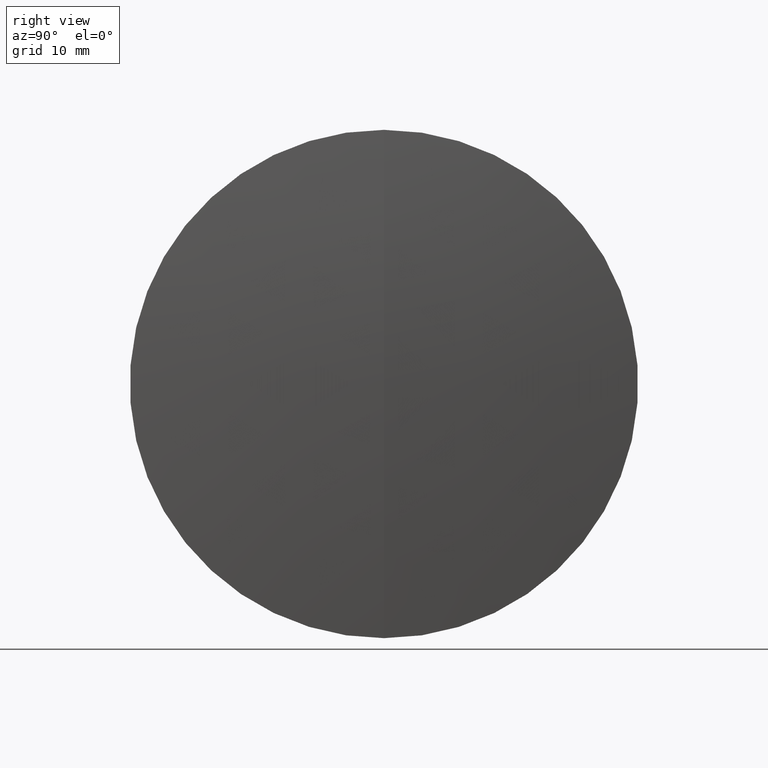
[diagram: clean part render]
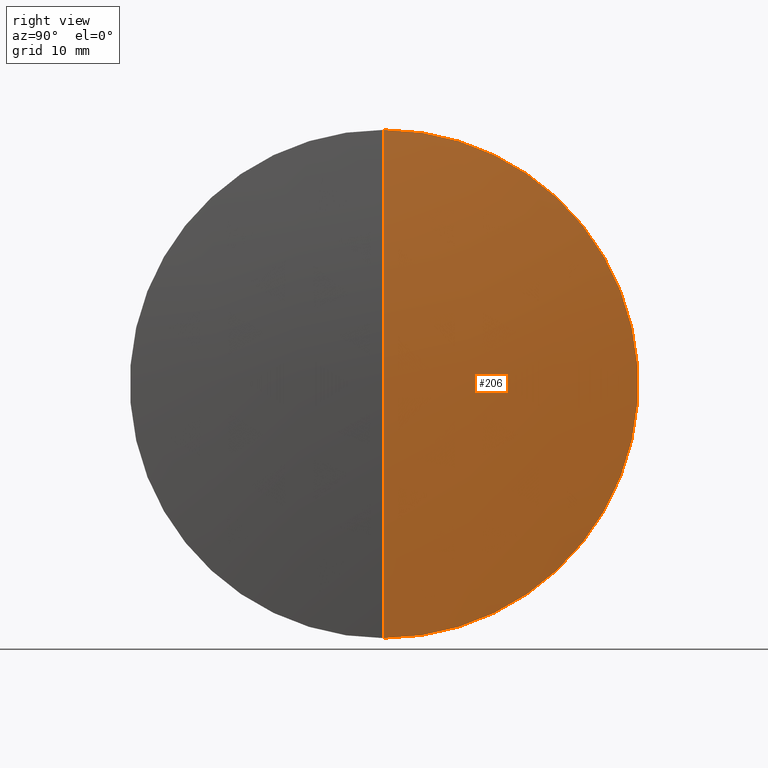
[diagram: same view with one face highlighted and labeled with its STEP entity id]
A machine part, right view. The second image highlights one B-rep face of the part: STEP entity #206.
In plain terms, the highlighted spherical surface has radius 238.5 mm.
Its self-contained STEP definition (entity closure, byte-faithful):
#32 = CARTESIAN_POINT ( 'NONE',  ( 348.5574619542142000, 0.0000000000000000000, 1.460391307983218500E-014 ) ) ;
#50 = CIRCLE ( 'NONE', #180, 25.39999999999994900 ) ;
#59 = CARTESIAN_POINT ( 'NONE',  ( 110.0574619542142300, 0.0000000000000000000, 0.0000000000000000000 ) ) ;
#63 = CARTESIAN_POINT ( 'NONE',  ( 110.0574619542142300, 0.0000000000000000000, 0.0000000000000000000 ) ) ;
#64 = DIRECTION ( 'NONE',  ( 0.0000000000000000000, -1.224646799147353200E-016, 1.000000000000000000 ) ) ;
#81 = ORIENTED_EDGE ( 'NONE', *, *, #189, .F. ) ;
#87 = VERTEX_POINT ( 'NONE', #32 ) ;
#91 = CARTESIAN_POINT ( 'NONE',  ( 347.2010682353029000, 0.0000000000000000000, 25.39999999999994900 ) ) ;
#92 = DIRECTION ( 'NONE',  ( 0.0000000000000000000, 0.0000000000000000000, 1.000000000000000000 ) ) ;
#112 = ORIENTED_EDGE ( 'NONE', *, *, #183, .T. ) ;
#123 = CARTESIAN_POINT ( 'NONE',  ( 347.2010682353029000, 3.110602869834273700E-015, -25.39999999999994900 ) ) ;
#143 = AXIS2_PLACEMENT_3D ( 'NONE', #153, #341, #256 ) ;
#153 = CARTESIAN_POINT ( 'NONE',  ( 110.0574619542142300, 0.0000000000000000000, 0.0000000000000000000 ) ) ;
#176 = EDGE_LOOP ( 'NONE', ( #81, #112, #192 ) ) ;
#180 = AXIS2_PLACEMENT_3D ( 'NONE', #340, #211, #92 ) ;
#183 = EDGE_CURVE ( 'NONE', #87, #224, #278, .T. ) ;
#189 = EDGE_CURVE ( 'NONE', #87, #242, #201, .T. ) ;
#192 = ORIENTED_EDGE ( 'NONE', *, *, #215, .F. ) ;
#193 = SPHERICAL_SURFACE ( 'NONE', #257, 238.4999999999999700 ) ;
#201 = CIRCLE ( 'NONE', #143, 238.4999999999999700 ) ;
#206 = ADVANCED_FACE ( 'NONE', ( #282 ), #193, .T. ) ;
#211 = DIRECTION ( 'NONE',  ( -1.000000000000000000, -0.0000000000000000000, -0.0000000000000000000 ) ) ;
#215 = EDGE_CURVE ( 'NONE', #242, #224, #50, .T. ) ;
#224 = VERTEX_POINT ( 'NONE', #123 ) ;
#235 = AXIS2_PLACEMENT_3D ( 'NONE', #59, #290, #64 ) ;
#242 = VERTEX_POINT ( 'NONE', #91 ) ;
#256 = DIRECTION ( 'NONE',  ( 0.0000000000000000000, 0.0000000000000000000, -1.000000000000000000 ) ) ;
#257 = AXIS2_PLACEMENT_3D ( 'NONE', #63, #265, #285 ) ;
#265 = DIRECTION ( 'NONE',  ( 0.0000000000000000000, 1.000000000000000000, 0.0000000000000000000 ) ) ;
#278 = CIRCLE ( 'NONE', #235, 238.4999999999999700 ) ;
#282 = FACE_OUTER_BOUND ( 'NONE', #176, .T. ) ;
#285 = DIRECTION ( 'NONE',  ( 0.0000000000000000000, 0.0000000000000000000, 1.000000000000000000 ) ) ;
#290 = DIRECTION ( 'NONE',  ( -0.0000000000000000000, 1.000000000000000000, 1.224646799147353200E-016 ) ) ;
#340 = CARTESIAN_POINT ( 'NONE',  ( 347.2010682353029000, 0.0000000000000000000, 0.0000000000000000000 ) ) ;
#341 = DIRECTION ( 'NONE',  ( 0.0000000000000000000, -1.000000000000000000, 0.0000000000000000000 ) ) ;